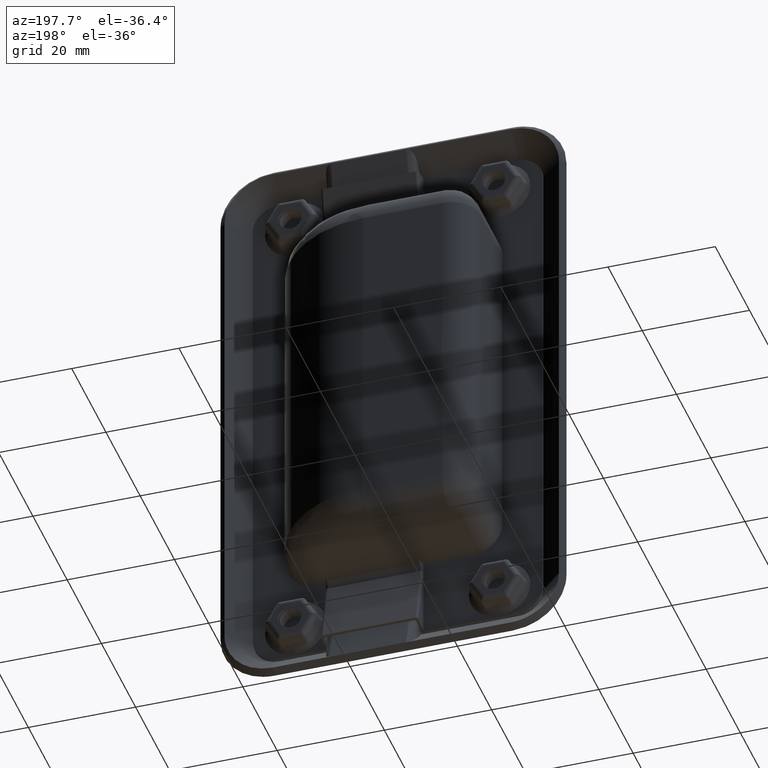
[diagram: clean part render]
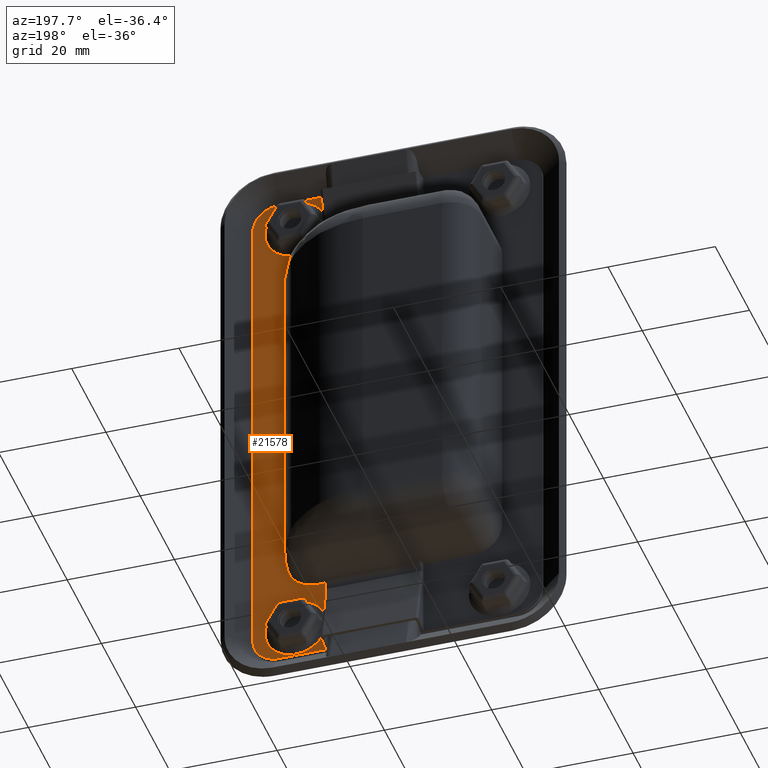
[diagram: same view with one face highlighted and labeled with its STEP entity id]
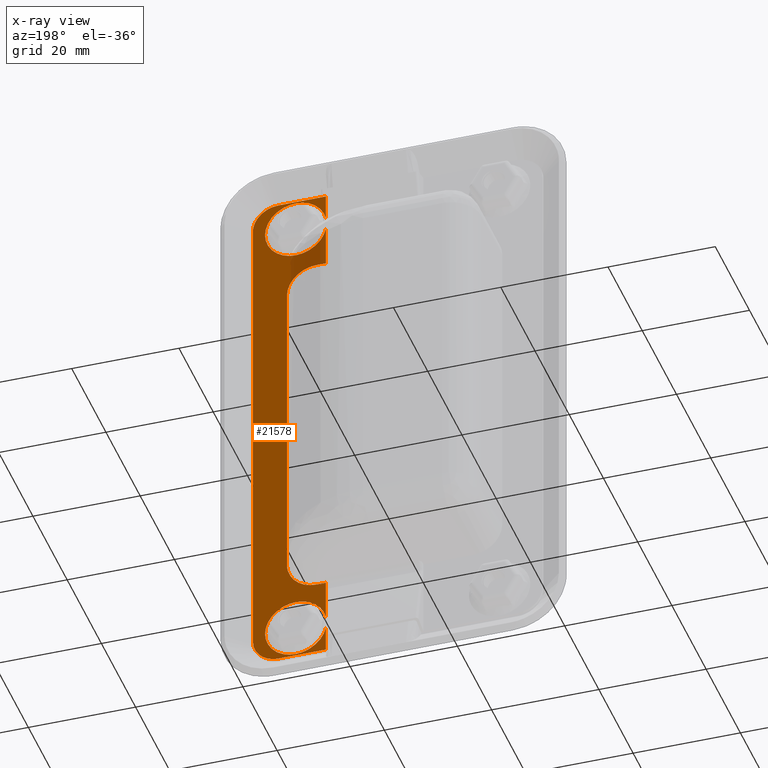
[diagram: x-ray of the same camera — body ghosted, the highlighted face saturated]
A machine part, auxiliary view. The second image highlights one B-rep face of the part: STEP entity #21578.
The next image is the same camera in x-ray: the body ghosted, the highlighted face saturated — about 5% of this face is hidden behind the body in this view.
In plain terms, the highlighted face is a freeform B-spline surface patch.
Its self-contained STEP definition (entity closure, byte-faithful):
#5319=CARTESIAN_POINT('',(51.206501206762340,-3.499985000020947,38.273678170030870));
#5320=VERTEX_POINT('',#5319);
#5321=CARTESIAN_POINT('',(51.293498792754157,-3.499985000014688,49.726321829961222));
#5322=VERTEX_POINT('',#5321);
#5323=CARTESIAN_POINT('',(51.206501206762340,-3.499985000020947,38.273678170030877));
#5324=CARTESIAN_POINT('',(51.530041725205542,-3.499985000000001,38.271220462901525));
#5325=CARTESIAN_POINT('',(51.851799970257041,-3.499985000000000,38.305222511743857));
#5326=CARTESIAN_POINT('',(56.976487042240663,-3.499984999999999,38.846777740873755));
#5327=CARTESIAN_POINT('',(56.976487042240670,-3.499985000000000,44.0));
#5328=CARTESIAN_POINT('',(56.976487042240663,-3.499984999999999,49.153222259126288));
#5329=CARTESIAN_POINT('',(51.851799970256991,-3.499985000000000,49.694777488256143));
#5330=CARTESIAN_POINT('',(51.573420377377580,-3.499985000000001,49.724195464825108));
#5331=CARTESIAN_POINT('',(51.293498792754164,-3.499985000014689,49.726321829961222));
#5339=(BOUNDED_CURVE()B_SPLINE_CURVE(2,(#5323,#5324,#5325,#5326,#5327,#5328,#5329,#5330,#5331),.UNSPECIFIED.,.F.,.U.)B_SPLINE_CURVE_WITH_KNOTS((3,2,2,2,3),(0.229331747048959,0.250000000000000,0.500000000000000,0.750000000000000,0.767933112117414),.UNSPECIFIED.)CURVE()GEOMETRIC_REPRESENTATION_ITEM()RATIONAL_B_SPLINE_CURVE((0.961069819125730,0.978780641267932,1.0,0.743333909470574,1.0,0.743333909470574,1.0,0.981588712887190,0.965818799182540))REPRESENTATION_ITEM(''));
#5340=EDGE_CURVE('',#5320,#5322,#5339,.T.);
#5504=CARTESIAN_POINT('',(45.650000000000013,-3.499985000000000,42.803064811716752));
#5505=VERTEX_POINT('',#5504);
#5506=CARTESIAN_POINT('',(45.650000000000027,-3.499985000000000,42.803064811716759));
#5507=CARTESIAN_POINT('',(46.610642050450437,-3.499985000000001,38.308589642816266));
#5508=CARTESIAN_POINT('',(51.206501206762340,-3.499985000020947,38.273678170030877));
#5516=(BOUNDED_CURVE()B_SPLINE_CURVE(2,(#5506,#5507,#5508),.UNSPECIFIED.,.F.,.U.)B_SPLINE_CURVE_WITH_KNOTS((3,3),(0.0,0.229331747048959),.UNSPECIFIED.)CURVE()GEOMETRIC_REPRESENTATION_ITEM()RATIONAL_B_SPLINE_CURVE((1.0,0.764553268202641,0.961069819125731))REPRESENTATION_ITEM(''));
#5517=EDGE_CURVE('',#5505,#5320,#5516,.T.);
#5519=CARTESIAN_POINT('',(45.650000000000013,-3.499985000000000,45.196935188283199));
#5520=VERTEX_POINT('',#5519);
#5535=CARTESIAN_POINT('',(51.293498792754164,-3.499985000014689,49.726321829961229));
#5536=CARTESIAN_POINT('',(46.625682727373743,-3.499985000000001,49.761779907344220));
#5537=CARTESIAN_POINT('',(45.650000000000020,-3.499985000000000,45.196935188283199));
#5545=(BOUNDED_CURVE()B_SPLINE_CURVE(2,(#5535,#5536,#5537),.UNSPECIFIED.,.F.,.U.)B_SPLINE_CURVE_WITH_KNOTS((3,3),(0.767933112117414,1.0),.UNSPECIFIED.)CURVE()GEOMETRIC_REPRESENTATION_ITEM()RATIONAL_B_SPLINE_CURVE((0.965818799182539,0.761745196583384,1.0))REPRESENTATION_ITEM(''));
#5546=EDGE_CURVE('',#5322,#5520,#5545,.T.);
#6078=CARTESIAN_POINT('',(51.206501206762397,-3.499985000020944,-49.726321829969123));
#6079=VERTEX_POINT('',#6078);
#6080=CARTESIAN_POINT('',(51.293498792754107,-3.499985000014688,-38.273678170038771));
#6081=VERTEX_POINT('',#6080);
#6082=CARTESIAN_POINT('',(51.206501206762397,-3.499985000020944,-49.726321829969130));
#6083=CARTESIAN_POINT('',(51.530041725205599,-3.499985000000001,-49.728779537098475));
#6084=CARTESIAN_POINT('',(51.851799970257069,-3.499985000000000,-49.694777488256143));
#6085=CARTESIAN_POINT('',(56.976487042240677,-3.499985000000001,-49.153222259126217));
#6086=CARTESIAN_POINT('',(56.976487042240677,-3.499985000000000,-44.0));
#6087=CARTESIAN_POINT('',(56.976487042240677,-3.499985000000001,-38.846777740873719));
#6088=CARTESIAN_POINT('',(51.851799970257012,-3.499985000000000,-38.305222511743843));
#6089=CARTESIAN_POINT('',(51.573420377377545,-3.499984999999999,-38.275804535174871));
#6090=CARTESIAN_POINT('',(51.293498792754114,-3.499985000014688,-38.273678170038771));
#6098=(BOUNDED_CURVE()B_SPLINE_CURVE(2,(#6082,#6083,#6084,#6085,#6086,#6087,#6088,#6089,#6090),.UNSPECIFIED.,.F.,.U.)B_SPLINE_CURVE_WITH_KNOTS((3,2,2,2,3),(0.229331747048960,0.250000000000000,0.500000000000000,0.750000000000000,0.767933112117416),.UNSPECIFIED.)CURVE()GEOMETRIC_REPRESENTATION_ITEM()RATIONAL_B_SPLINE_CURVE((0.961069819125732,0.978780641267933,1.0,0.743333909470575,1.0,0.743333909470575,1.0,0.981588712887188,0.965818799182535))REPRESENTATION_ITEM(''));
#6099=EDGE_CURVE('',#6079,#6081,#6098,.T.);
#6263=CARTESIAN_POINT('',(45.650000000000013,-3.499985000000000,-45.196935188283298));
#6264=VERTEX_POINT('',#6263);
#6265=CARTESIAN_POINT('',(45.650000000000027,-3.499985000000000,-45.196935188283291));
#6266=CARTESIAN_POINT('',(46.610642050450494,-3.499985000000001,-49.691410357183770));
#6267=CARTESIAN_POINT('',(51.206501206762404,-3.499985000020944,-49.726321829969123));
#6275=(BOUNDED_CURVE()B_SPLINE_CURVE(2,(#6265,#6266,#6267),.UNSPECIFIED.,.F.,.U.)B_SPLINE_CURVE_WITH_KNOTS((3,3),(0.0,0.229331747048960),.UNSPECIFIED.)CURVE()GEOMETRIC_REPRESENTATION_ITEM()RATIONAL_B_SPLINE_CURVE((1.0,0.764553268202642,0.961069819125732))REPRESENTATION_ITEM(''));
#6276=EDGE_CURVE('',#6264,#6079,#6275,.T.);
#6278=CARTESIAN_POINT('',(45.650000000000013,-3.499985000000000,-42.803064811716752));
#6279=VERTEX_POINT('',#6278);
#6293=CARTESIAN_POINT('',(51.293498792754121,-3.499985000014688,-38.273678170038778));
#6294=CARTESIAN_POINT('',(46.625682727373743,-3.499985000000000,-38.238220092655801));
#6295=CARTESIAN_POINT('',(45.650000000000020,-3.499985000000000,-42.803064811716759));
#6303=(BOUNDED_CURVE()B_SPLINE_CURVE(2,(#6293,#6294,#6295),.UNSPECIFIED.,.F.,.U.)B_SPLINE_CURVE_WITH_KNOTS((3,3),(0.767933112117416,1.0),.UNSPECIFIED.)CURVE()GEOMETRIC_REPRESENTATION_ITEM()RATIONAL_B_SPLINE_CURVE((0.965818799182535,0.761745196583388,1.0))REPRESENTATION_ITEM(''));
#6304=EDGE_CURVE('',#6081,#6279,#6303,.T.);
#6935=CARTESIAN_POINT('',(45.650000000000013,-3.499985000000000,50.0));
#6936=VERTEX_POINT('',#6935);
#6981=CARTESIAN_POINT('',(45.650000000000013,-3.499985000000000,-50.0));
#6982=VERTEX_POINT('',#6981);
#17578=CARTESIAN_POINT('',(45.650000000000013,-3.499985000000000,-37.033468298494448));
#17579=VERTEX_POINT('',#17578);
#17610=CARTESIAN_POINT('',(45.650000000000013,-3.499985000000000,-35.922174519711149));
#17611=VERTEX_POINT('',#17610);
#17625=CARTESIAN_POINT('',(45.650000000000013,-3.499985000000000,-37.033468298494448));
#17626=CARTESIAN_POINT('',(45.650000000000013,-3.499985000000000,-35.922174519711149));
#17627=QUASI_UNIFORM_CURVE('',1,(#17625,#17626),.UNSPECIFIED.,.F.,.U.);
#17628=EDGE_CURVE('',#17579,#17611,#17627,.T.);
#17745=CARTESIAN_POINT('',(45.650000000000013,-3.499985000000000,-37.388475115810948));
#17746=VERTEX_POINT('',#17745);
#17770=CARTESIAN_POINT('',(45.650000000000013,-3.499985000000000,-37.388475115810948));
#17771=CARTESIAN_POINT('',(45.650000000000013,-3.499985000000000,-37.033468298494448));
#17772=QUASI_UNIFORM_CURVE('',1,(#17770,#17771),.UNSPECIFIED.,.F.,.U.);
#17773=EDGE_CURVE('',#17746,#17579,#17772,.T.);
#18486=CARTESIAN_POINT('',(45.650000000000013,-3.499985000000000,35.922174519711000));
#18487=VERTEX_POINT('',#18486);
#18545=CARTESIAN_POINT('',(45.650000000000013,-3.499985000000000,37.033468298494363));
#18546=VERTEX_POINT('',#18545);
#18560=CARTESIAN_POINT('',(45.650000000000013,-3.499985000000000,37.033468298494363));
#18561=CARTESIAN_POINT('',(45.650000000000013,-3.499985000000000,35.922174519711000));
#18562=QUASI_UNIFORM_CURVE('',1,(#18560,#18561),.UNSPECIFIED.,.F.,.U.);
#18563=EDGE_CURVE('',#18546,#18487,#18562,.T.);
#18632=CARTESIAN_POINT('',(45.650000000000013,-3.499985000000000,37.388475115810948));
#18633=VERTEX_POINT('',#18632);
#18647=CARTESIAN_POINT('',(45.650000000000013,-3.499985000000000,37.388475115810948));
#18648=CARTESIAN_POINT('',(45.650000000000013,-3.499985000000000,37.033468298494363));
#18649=QUASI_UNIFORM_CURVE('',1,(#18647,#18648),.UNSPECIFIED.,.F.,.U.);
#18650=EDGE_CURVE('',#18633,#18546,#18649,.T.);
#19611=CARTESIAN_POINT('',(59.250000000000000,-3.499985000000000,-45.250000000000000));
#19612=VERTEX_POINT('',#19611);
#19613=CARTESIAN_POINT('',(54.500000000000000,-3.499985000000000,-50.0));
#19614=VERTEX_POINT('',#19613);
#19615=CARTESIAN_POINT('',(59.250000000000000,-3.499984999999930,-45.250000000000000));
#19616=CARTESIAN_POINT('',(59.250000000000014,-3.499984999999931,-49.999999999999986));
#19617=CARTESIAN_POINT('',(54.500000000000000,-3.499984999999930,-49.999999999999993));
#19625=(BOUNDED_CURVE()B_SPLINE_CURVE(2,(#19615,#19616,#19617),.UNSPECIFIED.,.F.,.U.)CURVE()GEOMETRIC_REPRESENTATION_ITEM()QUASI_UNIFORM_CURVE()RATIONAL_B_SPLINE_CURVE((1.0,0.707106781186548,1.0))REPRESENTATION_ITEM(''));
#19626=EDGE_CURVE('',#19612,#19614,#19625,.T.);
#19672=CARTESIAN_POINT('',(54.500000000000000,-3.499985000000000,50.0));
#19673=VERTEX_POINT('',#19672);
#19674=CARTESIAN_POINT('',(59.250000000000000,-3.499985000000000,45.250000000000000));
#19675=VERTEX_POINT('',#19674);
#19676=CARTESIAN_POINT('',(54.500000000000000,-3.499984999999930,49.999999999999993));
#19677=CARTESIAN_POINT('',(59.250000000000014,-3.499984999999931,49.999999999999986));
#19678=CARTESIAN_POINT('',(59.250000000000000,-3.499984999999930,45.250000000000000));
#19686=(BOUNDED_CURVE()B_SPLINE_CURVE(2,(#19676,#19677,#19678),.UNSPECIFIED.,.F.,.U.)CURVE()GEOMETRIC_REPRESENTATION_ITEM()QUASI_UNIFORM_CURVE()RATIONAL_B_SPLINE_CURVE((1.0,0.707106781186548,1.0))REPRESENTATION_ITEM(''));
#19687=EDGE_CURVE('',#19673,#19675,#19686,.T.);
#20107=CARTESIAN_POINT('',(45.650000000000013,-3.499985000000000,50.0));
#20108=CARTESIAN_POINT('',(45.650000000000013,-3.499985000000000,45.196935188283199));
#20109=QUASI_UNIFORM_CURVE('',1,(#20107,#20108),.UNSPECIFIED.,.F.,.U.);
#20110=EDGE_CURVE('',#6936,#5520,#20109,.T.);
#20113=CARTESIAN_POINT('',(45.650000000000013,-3.499985000000000,42.803064811716752));
#20114=CARTESIAN_POINT('',(45.650000000000013,-3.499985000000000,37.388475115810948));
#20115=QUASI_UNIFORM_CURVE('',1,(#20113,#20114),.UNSPECIFIED.,.F.,.U.);
#20116=EDGE_CURVE('',#5505,#18633,#20115,.T.);
#20790=CARTESIAN_POINT('',(52.883822943139897,-3.499985000000000,29.750000000000000));
#20791=VERTEX_POINT('',#20790);
#20792=CARTESIAN_POINT('',(47.345480894869212,-3.499985000000000,35.250000000000000));
#20793=VERTEX_POINT('',#20792);
#20794=CARTESIAN_POINT('',(52.883822943139897,-3.499985000000000,29.750000000000000));
#20795=CARTESIAN_POINT('',(52.883822943139911,-3.499985000000000,30.114483735542180));
#20796=CARTESIAN_POINT('',(52.847770108238450,-3.499985000000001,30.472822631908191));
#20797=CARTESIAN_POINT('',(52.741842530152162,-3.499985000000000,31.001493956454151));
#20798=CARTESIAN_POINT('',(52.697827108953867,-3.499985000000000,31.176233843166759));
#20799=CARTESIAN_POINT('',(52.618444282700132,-3.499985000000001,31.436066649137530));
#20800=CARTESIAN_POINT('',(52.589683911229642,-3.499985000000001,31.522484576175788));
#20801=CARTESIAN_POINT('',(52.527922986228063,-3.499985000000001,31.693660885905469));
#20802=CARTESIAN_POINT('',(52.495036007736871,-3.499985000000000,31.778137139736550));
#20803=CARTESIAN_POINT('',(52.320773280707023,-3.499985000000000,32.195072362373899));
#20804=CARTESIAN_POINT('',(52.150194850243111,-3.499985000000001,32.511348807653107));
#20805=CARTESIAN_POINT('',(51.898363124415148,-3.499985000000001,32.885299548548801));
#20806=CARTESIAN_POINT('',(51.846048902117047,-3.499985000000001,32.959010290130770));
#20807=CARTESIAN_POINT('',(51.737462298646662,-3.499985000000001,33.104238378891132));
#20808=CARTESIAN_POINT('',(51.681023303385217,-3.499985000000001,33.175949763456138));
#20809=CARTESIAN_POINT('',(51.507168835602293,-3.499985000000000,33.385899857450660));
#20810=CARTESIAN_POINT('',(51.385217343411007,-3.499985000000000,33.519087852406152));
#20811=CARTESIAN_POINT('',(51.001782859108189,-3.499985000000001,33.898949442733048));
#20812=CARTESIAN_POINT('',(50.722885066504013,-3.499985000000000,34.126105795824337));
#20813=CARTESIAN_POINT('',(50.344484797669743,-3.499985000000001,34.376678188275882));
#20814=CARTESIAN_POINT('',(50.267142119586183,-3.499985000000000,34.425192708637233));
#20815=CARTESIAN_POINT('',(50.111054844388477,-3.499984999999999,34.517823763568813));
#20816=CARTESIAN_POINT('',(50.032148020084719,-3.499984999999999,34.562058307767551));
#20817=CARTESIAN_POINT('',(49.792885438935173,-3.499985000000001,34.688633388247588));
#20818=CARTESIAN_POINT('',(49.467101574727380,-3.499985000000001,34.841085963210631));
#20819=CARTESIAN_POINT('',(49.127989077406163,-3.499985000000001,34.961405672451342));
#20820=CARTESIAN_POINT('',(48.868591218689758,-3.499985000000001,35.039438328150787));
#20821=CARTESIAN_POINT('',(48.781279882407148,-3.499985000000000,35.063411150642601));
#20822=CARTESIAN_POINT('',(48.604937029355888,-3.499984999999999,35.107209759084220));
#20823=CARTESIAN_POINT('',(48.515873331828182,-3.499985000000000,35.127028950700620));
#20824=CARTESIAN_POINT('',(48.070311552426361,-3.499985000000001,35.214808754343672));
#20825=CARTESIAN_POINT('',(47.709890853497711,-3.499985000000001,35.250000000000000));
#20826=CARTESIAN_POINT('',(47.345480894869212,-3.499985000000000,35.250000000000000));
#20827=B_SPLINE_CURVE_WITH_KNOTS('',3,(#20794,#20795,#20796,#20797,#20798,#20799,#20800,#20801,#20802,#20803,#20804,#20805,#20806,#20807,#20808,#20809,#20810,#20811,#20812,#20813,#20814,#20815,#20816,#20817,#20818,#20819,#20820,#20821,#20822,#20823,#20824,#20825,#20826),.UNSPECIFIED.,.F.,.U.,(4,2,2,2,2,2,2,2,2,2,2,2,1,2,2,2,4),(0.0,0.124999999999992,0.187499999999988,0.218749999999985,0.249999999999982,0.374999999999976,0.406249999999975,0.437499999999975,0.499999999999976,0.624999999999982,0.656249999999983,0.687499999999985,0.749999999999990,0.812499999999995,0.843749999999996,0.874999999999998,1.0),.UNSPECIFIED.);
#20828=EDGE_CURVE('',#20791,#20793,#20827,.T.);
#21039=CARTESIAN_POINT('',(47.345480894869212,-3.499985000000000,-35.250000000000000));
#21040=VERTEX_POINT('',#21039);
#21041=CARTESIAN_POINT('',(52.883822943139897,-3.499985000000000,-29.750000000000000));
#21042=VERTEX_POINT('',#21041);
#21043=CARTESIAN_POINT('',(47.345480894869212,-3.499985000000000,-35.250000000000000));
#21044=CARTESIAN_POINT('',(47.709923726992493,-3.499985000000002,-35.250000000000000));
#21045=CARTESIAN_POINT('',(48.068394131308750,-3.499985000000000,-35.214805395901159));
#21046=CARTESIAN_POINT('',(48.597466698763803,-3.499985000000001,-35.111140310490917));
#21047=CARTESIAN_POINT('',(48.772375026441502,-3.499984999999999,-35.068045398550730));
#21048=CARTESIAN_POINT('',(49.032511067026803,-3.499985000000001,-34.990282895646097));
#21049=CARTESIAN_POINT('',(49.118926053052562,-3.499985000000001,-34.962145016867673));
#21050=CARTESIAN_POINT('',(49.290682640504990,-3.499985000000001,-34.901497526578787));
#21051=CARTESIAN_POINT('',(49.375461684305719,-3.499985000000000,-34.869190769328071));
#21052=CARTESIAN_POINT('',(49.793968830561731,-3.499985000000000,-34.697937070213683));
#21053=CARTESIAN_POINT('',(50.111683932035881,-3.499984999999999,-34.530103180926119));
#21054=CARTESIAN_POINT('',(50.487625967807404,-3.499985000000000,-34.282063368446281));
#21055=CARTESIAN_POINT('',(50.561744873742292,-3.499984999999999,-34.230526059569129));
#21056=CARTESIAN_POINT('',(50.707809218870047,-3.499985000000002,-34.123530576539238));
#21057=CARTESIAN_POINT('',(50.779865224172418,-3.499985000000001,-34.067982242688309));
#21058=CARTESIAN_POINT('',(50.991966698892000,-3.499985000000001,-33.895911784069497));
#21059=CARTESIAN_POINT('',(51.126549508874220,-3.499985000000002,-33.775157257274273));
#21060=CARTESIAN_POINT('',(51.510494585853927,-3.499985000000000,-33.395347945973143));
#21061=CARTESIAN_POINT('',(51.740240203713313,-3.499985000000001,-33.118912849768662));
#21062=CARTESIAN_POINT('',(51.993918144557597,-3.499985000000001,-32.743684430679409));
#21063=CARTESIAN_POINT('',(52.043076592809527,-3.499985000000000,-32.666951294536410));
#21064=CARTESIAN_POINT('',(52.137376305576922,-3.499985000000000,-32.511345040604930));
#21065=CARTESIAN_POINT('',(52.182405653605180,-3.499985000000000,-32.432680844363389));
#21066=CARTESIAN_POINT('',(52.311255219579159,-3.499985000000002,-32.194155013166522));
#21067=CARTESIAN_POINT('',(52.466448541306029,-3.499985000000000,-31.869377376197232));
#21068=CARTESIAN_POINT('',(52.588985342766243,-3.499984999999999,-31.531338991547660));
#21069=CARTESIAN_POINT('',(52.668493410042522,-3.499985000000000,-31.272777187165179));
#21070=CARTESIAN_POINT('',(52.692926666324809,-3.499984999999999,-31.185749589875002));
#21071=CARTESIAN_POINT('',(52.737583219583982,-3.499985000000000,-31.009984868142379));
#21072=CARTESIAN_POINT('',(52.757844876791992,-3.499985000000000,-30.921038802842610));
#21073=CARTESIAN_POINT('',(52.847757218887573,-3.499985000000001,-30.475139732690671));
#21074=CARTESIAN_POINT('',(52.883822943139911,-3.499985000000001,-30.114527363514199));
#21075=CARTESIAN_POINT('',(52.883822943139897,-3.499985000000000,-29.750000000000000));
#21076=B_SPLINE_CURVE_WITH_KNOTS('',3,(#21043,#21044,#21045,#21046,#21047,#21048,#21049,#21050,#21051,#21052,#21053,#21054,#21055,#21056,#21057,#21058,#21059,#21060,#21061,#21062,#21063,#21064,#21065,#21066,#21067,#21068,#21069,#21070,#21071,#21072,#21073,#21074,#21075),.UNSPECIFIED.,.F.,.U.,(4,2,2,2,2,2,2,2,2,2,2,2,1,2,2,2,4),(0.0,0.125000000000004,0.187500000000005,0.218750000000006,0.250000000000007,0.375000000000006,0.406250000000004,0.437500000000002,0.499999999999998,0.624999999999992,0.656249999999992,0.687499999999992,0.749999999999994,0.812499999999995,0.843749999999996,0.874999999999996,1.0),.UNSPECIFIED.);
#21077=EDGE_CURVE('',#21040,#21042,#21076,.T.);
#21331=CARTESIAN_POINT('',(45.650000000000013,-3.499985000000000,35.250000000000000));
#21332=VERTEX_POINT('',#21331);
#21338=CARTESIAN_POINT('',(47.345480894869212,-3.499985000000000,35.250000000000000));
#21339=CARTESIAN_POINT('',(45.650000000000013,-3.499985000000000,35.250000000000000));
#21340=QUASI_UNIFORM_CURVE('',1,(#21338,#21339),.UNSPECIFIED.,.F.,.U.);
#21341=EDGE_CURVE('',#20793,#21332,#21340,.T.);
#21384=CARTESIAN_POINT('',(52.883822943139897,-3.499985000000000,-29.750000000000000));
#21385=CARTESIAN_POINT('',(52.883822943139897,-3.499985000000000,29.750000000000000));
#21386=QUASI_UNIFORM_CURVE('',1,(#21384,#21385),.UNSPECIFIED.,.F.,.U.);
#21387=EDGE_CURVE('',#21042,#20791,#21386,.T.);
#21420=CARTESIAN_POINT('',(59.250000000000000,-3.499985000000000,-45.250000000000000));
#21421=CARTESIAN_POINT('',(59.250000000000000,-3.499985000000000,45.250000000000000));
#21422=QUASI_UNIFORM_CURVE('',1,(#21420,#21421),.UNSPECIFIED.,.F.,.U.);
#21423=EDGE_CURVE('',#19612,#19675,#21422,.T.);
#21440=CARTESIAN_POINT('',(45.650000000000013,-3.499985000000000,-35.250000000000000));
#21441=VERTEX_POINT('',#21440);
#21459=CARTESIAN_POINT('',(47.345480894869212,-3.499985000000000,-35.250000000000000));
#21460=CARTESIAN_POINT('',(45.650000000000013,-3.499985000000000,-35.250000000000000));
#21461=QUASI_UNIFORM_CURVE('',1,(#21459,#21460),.UNSPECIFIED.,.F.,.U.);
#21462=EDGE_CURVE('',#21040,#21441,#21461,.T.);
#21521=CARTESIAN_POINT('',(44.970681558364276,-3.499985000000000,54.994999806180587));
#21522=CARTESIAN_POINT('',(59.929320265537868,-3.499985000000000,54.994999806180587));
#21523=CARTESIAN_POINT('',(44.970681558364276,-3.499985000000000,-54.995002488389602));
#21524=CARTESIAN_POINT('',(59.929320265537868,-3.499985000000000,-54.995002488389602));
#21525=B_SPLINE_SURFACE_WITH_KNOTS('',1,1,((#21521,#21523),(#21522,#21524)),.UNSPECIFIED.,.F.,.F.,.U.,(2,2),(2,2),(0.0,14.958638707173581),(0.0,109.990002294570200),.UNSPECIFIED.);
#21526=ORIENTED_EDGE('',*,*,#20116,.F.);
#21527=ORIENTED_EDGE('',*,*,#5517,.T.);
#21528=ORIENTED_EDGE('',*,*,#5340,.T.);
#21529=ORIENTED_EDGE('',*,*,#5546,.T.);
#21530=ORIENTED_EDGE('',*,*,#20110,.F.);
#21531=CARTESIAN_POINT('',(54.500000000000000,-3.499985000000000,50.0));
#21532=CARTESIAN_POINT('',(45.650000000000013,-3.499985000000000,50.0));
#21533=QUASI_UNIFORM_CURVE('',1,(#21531,#21532),.UNSPECIFIED.,.F.,.U.);
#21534=EDGE_CURVE('',#19673,#6936,#21533,.T.);
#21535=ORIENTED_EDGE('',*,*,#21534,.F.);
#21536=ORIENTED_EDGE('',*,*,#19687,.T.);
#21537=ORIENTED_EDGE('',*,*,#21423,.F.);
#21538=ORIENTED_EDGE('',*,*,#19626,.T.);
#21539=CARTESIAN_POINT('',(45.650000000000013,-3.499985000000000,-50.0));
#21540=CARTESIAN_POINT('',(54.500000000000000,-3.499985000000000,-50.0));
#21541=QUASI_UNIFORM_CURVE('',1,(#21539,#21540),.UNSPECIFIED.,.F.,.U.);
#21542=EDGE_CURVE('',#6982,#19614,#21541,.T.);
#21543=ORIENTED_EDGE('',*,*,#21542,.F.);
#21544=CARTESIAN_POINT('',(45.650000000000013,-3.499985000000000,-50.0));
#21545=CARTESIAN_POINT('',(45.650000000000013,-3.499985000000000,-45.196935188283298));
#21546=QUASI_UNIFORM_CURVE('',1,(#21544,#21545),.UNSPECIFIED.,.F.,.U.);
#21547=EDGE_CURVE('',#6982,#6264,#21546,.T.);
#21548=ORIENTED_EDGE('',*,*,#21547,.T.);
#21549=ORIENTED_EDGE('',*,*,#6276,.T.);
#21550=ORIENTED_EDGE('',*,*,#6099,.T.);
#21551=ORIENTED_EDGE('',*,*,#6304,.T.);
#21552=CARTESIAN_POINT('',(45.650000000000013,-3.499985000000000,-42.803064811716752));
#21553=CARTESIAN_POINT('',(45.650000000000013,-3.499985000000000,-37.388475115810948));
#21554=QUASI_UNIFORM_CURVE('',1,(#21552,#21553),.UNSPECIFIED.,.F.,.U.);
#21555=EDGE_CURVE('',#6279,#17746,#21554,.T.);
#21556=ORIENTED_EDGE('',*,*,#21555,.T.);
#21557=ORIENTED_EDGE('',*,*,#17773,.T.);
#21558=ORIENTED_EDGE('',*,*,#17628,.T.);
#21559=CARTESIAN_POINT('',(45.650000000000013,-3.499985000000000,-35.922174519711149));
#21560=CARTESIAN_POINT('',(45.650000000000013,-3.499985000000000,-35.250000000000000));
#21561=QUASI_UNIFORM_CURVE('',1,(#21559,#21560),.UNSPECIFIED.,.F.,.U.);
#21562=EDGE_CURVE('',#17611,#21441,#21561,.T.);
#21563=ORIENTED_EDGE('',*,*,#21562,.T.);
#21564=ORIENTED_EDGE('',*,*,#21462,.F.);
#21565=ORIENTED_EDGE('',*,*,#21077,.T.);
#21566=ORIENTED_EDGE('',*,*,#21387,.T.);
#21567=ORIENTED_EDGE('',*,*,#20828,.T.);
#21568=ORIENTED_EDGE('',*,*,#21341,.T.);
#21569=CARTESIAN_POINT('',(45.650000000000013,-3.499985000000000,35.922174519711000));
#21570=CARTESIAN_POINT('',(45.650000000000013,-3.499985000000000,35.250000000000000));
#21571=QUASI_UNIFORM_CURVE('',1,(#21569,#21570),.UNSPECIFIED.,.F.,.U.);
#21572=EDGE_CURVE('',#18487,#21332,#21571,.T.);
#21573=ORIENTED_EDGE('',*,*,#21572,.F.);
#21574=ORIENTED_EDGE('',*,*,#18563,.F.);
#21575=ORIENTED_EDGE('',*,*,#18650,.F.);
#21576=EDGE_LOOP('',(#21526,#21527,#21528,#21529,#21530,#21535,#21536,#21537,#21538,#21543,#21548,#21549,#21550,#21551,#21556,#21557,#21558,#21563,#21564,#21565,#21566,#21567,#21568,#21573,#21574,#21575));
#21577=FACE_OUTER_BOUND('',#21576,.T.);
#21578=ADVANCED_FACE('',(#21577),#21525,.T.);